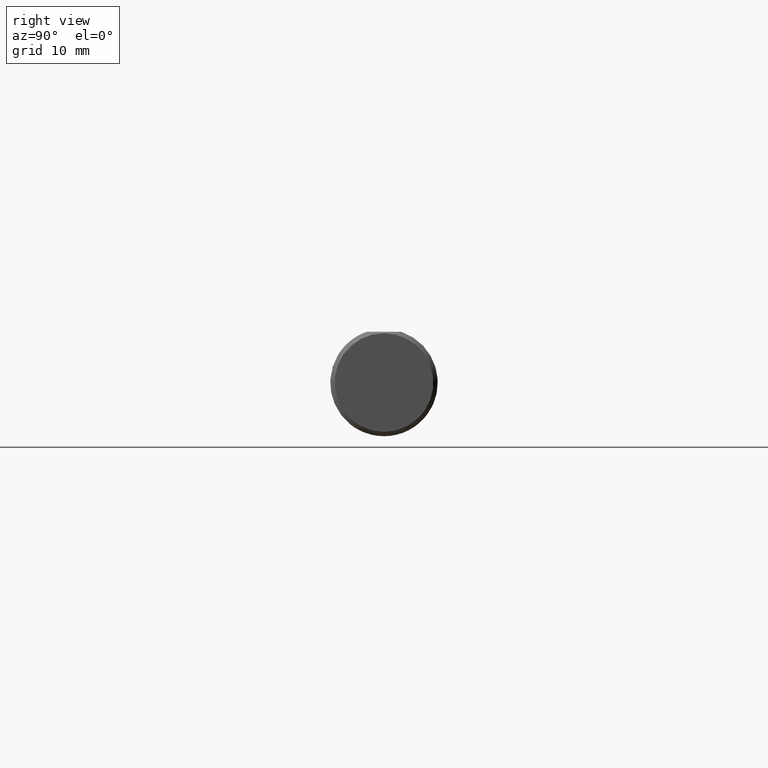
[diagram: clean part render]
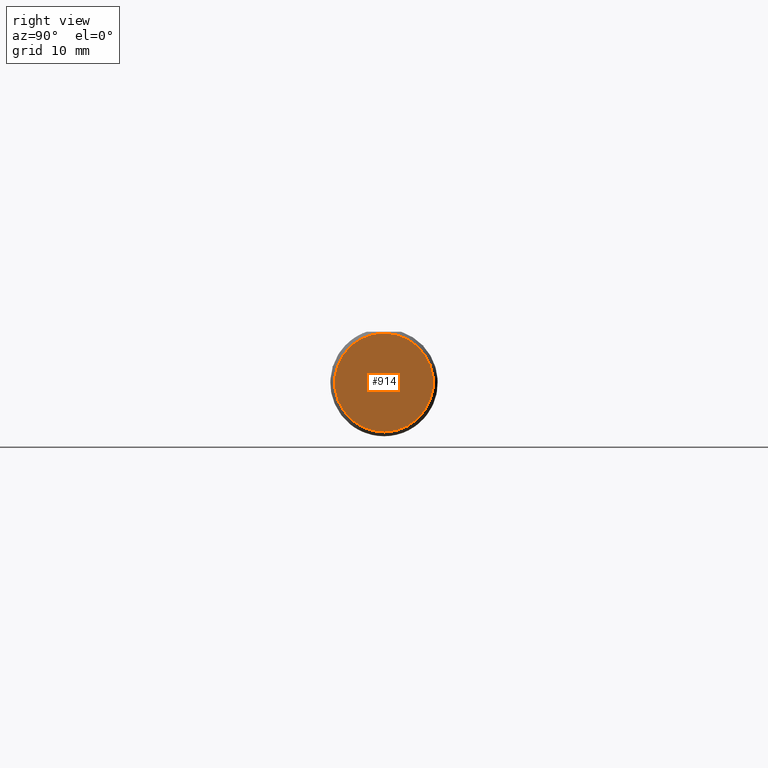
[diagram: same view with one face highlighted and labeled with its STEP entity id]
A machine part, right view. The second image highlights one B-rep face of the part: STEP entity #914.
In plain terms, the highlighted planar face has unit normal (-1, -0, 0).
Its self-contained STEP definition (entity closure, byte-faithful):
#19 = EDGE_LOOP ( 'NONE', ( #377, #922 ) ) ;
#121 = CARTESIAN_POINT ( 'NONE',  ( 0.000000000000000000, -1.945949569145855876E-17, 0.000000000000000000 ) ) ;
#122 = EDGE_CURVE ( 'NONE', #294, #477, #297, .T. ) ;
#204 = DIRECTION ( 'NONE',  ( 1.367017610920868456E-16, -1.000000000000000000, 0.000000000000000000 ) ) ;
#208 = FACE_OUTER_BOUND ( 'NONE', #19, .T. ) ;
#213 = AXIS2_PLACEMENT_3D ( 'NONE', #858, #434, #204 ) ;
#257 = DIRECTION ( 'NONE',  ( -1.000000000000000000, -1.367017610920868456E-16, -0.000000000000000000 ) ) ;
#273 = DIRECTION ( 'NONE',  ( 1.367017610920868456E-16, -1.000000000000000000, 0.000000000000000000 ) ) ;
#294 = VERTEX_POINT ( 'NONE', #521 ) ;
#297 = CIRCLE ( 'NONE', #486, 0.1723499999999999477 ) ;
#350 = CIRCLE ( 'NONE', #690, 0.1723499999999999477 ) ;
#359 = PLANE ( 'NONE',  #213 ) ;
#377 = ORIENTED_EDGE ( 'NONE', *, *, #122, .F. ) ;
#381 = CARTESIAN_POINT ( 'NONE',  ( 0.000000000000000000, -1.945949569145855876E-17, 0.000000000000000000 ) ) ;
#434 = DIRECTION ( 'NONE',  ( -1.000000000000000000, -1.367017610920868456E-16, 0.000000000000000000 ) ) ;
#477 = VERTEX_POINT ( 'NONE', #907 ) ;
#486 = AXIS2_PLACEMENT_3D ( 'NONE', #121, #257, #273 ) ;
#521 = CARTESIAN_POINT ( 'NONE',  ( -3.791200677927629740E-33, -3.791200677927629740E-33, -0.1723499999999999477 ) ) ;
#562 = DIRECTION ( 'NONE',  ( 1.367017610920868456E-16, -1.000000000000000000, 0.000000000000000000 ) ) ;
#674 = EDGE_CURVE ( 'NONE', #477, #294, #350, .T. ) ;
#690 = AXIS2_PLACEMENT_3D ( 'NONE', #381, #741, #562 ) ;
#741 = DIRECTION ( 'NONE',  ( -1.000000000000000000, -1.367017610920868456E-16, -0.000000000000000000 ) ) ;
#858 = CARTESIAN_POINT ( 'NONE',  ( 0.000000000000000000, 0.1873499999999999888, -0.1873499999999999888 ) ) ;
#907 = CARTESIAN_POINT ( 'NONE',  ( 0.000000000000000000, -2.202527268266524904E-17, 0.1723499999999999477 ) ) ;
#914 = ADVANCED_FACE ( 'NONE', ( #208 ), #359, .F. ) ;
#922 = ORIENTED_EDGE ( 'NONE', *, *, #674, .F. ) ;